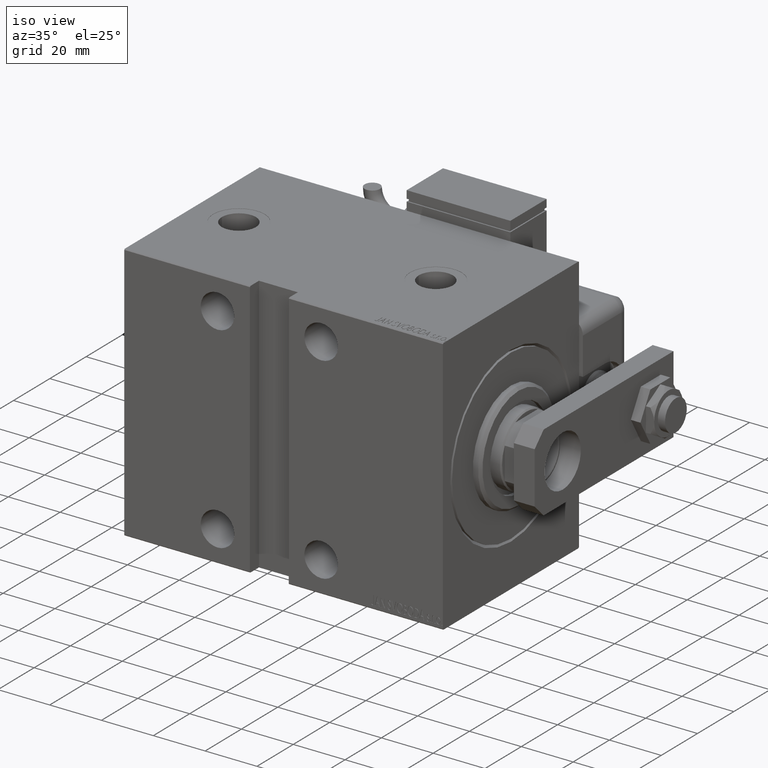
[diagram: clean part render]
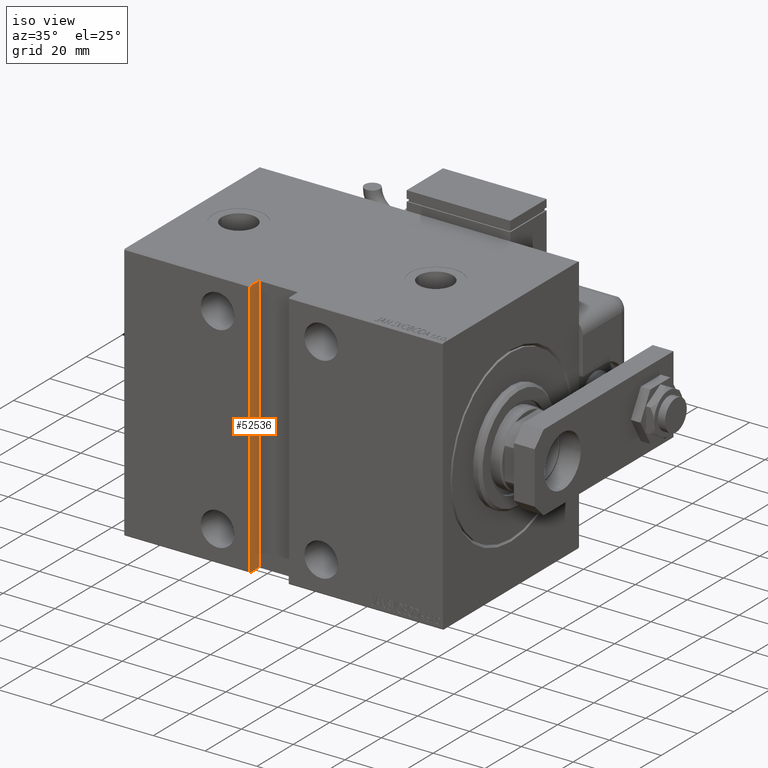
[diagram: same view with one face highlighted and labeled with its STEP entity id]
A machine part, iso view. The second image highlights one B-rep face of the part: STEP entity #52536.
In plain terms, the highlighted planar face has unit normal (-1, -0, -0).
Its self-contained STEP definition (entity closure, byte-faithful):
#1500 = DIRECTION ( 'NONE',  ( -2.775557561562893816E-16, 1.387778780781446908E-16, -1.000000000000000000 ) ) ;
#1581 = CARTESIAN_POINT ( 'NONE',  ( 74.50000000000004263, 37.20000000000000995, 50.00000000000001421 ) ) ;
#3787 = VERTEX_POINT ( 'NONE', #1581 ) ;
#6398 = EDGE_CURVE ( 'NONE', #46319, #32479, #11494, .T. ) ;
#9895 = VECTOR ( 'NONE', #30037, 1000.000000000000000 ) ;
#11494 = LINE ( 'NONE', #25175, #9895 ) ;
#12098 = CARTESIAN_POINT ( 'NONE',  ( 74.50000000000001421, 37.20000000000001705, -49.99999999999991473 ) ) ;
#12489 = VERTEX_POINT ( 'NONE', #13392 ) ;
#13114 = CARTESIAN_POINT ( 'NONE',  ( 74.50000000000001421, 32.50000000000000711, -49.99999999999991473 ) ) ;
#13392 = CARTESIAN_POINT ( 'NONE',  ( 74.50000000000001421, 37.50000000000000711, -49.70000000000003126 ) ) ;
#14417 = ORIENTED_EDGE ( 'NONE', *, *, #6398, .F. ) ;
#14741 = LINE ( 'NONE', #37268, #43562 ) ;
#14858 = LINE ( 'NONE', #51957, #34447 ) ;
#15161 = VERTEX_POINT ( 'NONE', #28469 ) ;
#16138 = ORIENTED_EDGE ( 'NONE', *, *, #47777, .F. ) ;
#23323 = LINE ( 'NONE', #55589, #37532 ) ;
#23863 = DIRECTION ( 'NONE',  ( -1.962615573354697696E-16, -0.7071067811865556774, -0.7071067811865393571 ) ) ;
#25175 = CARTESIAN_POINT ( 'NONE',  ( 74.50000000000001421, 32.50000000000000711, -49.99999999999991473 ) ) ;
#26635 = CARTESIAN_POINT ( 'NONE',  ( 74.50000000000004263, 32.49999999999999289, 50.00000000000001421 ) ) ;
#27995 = FACE_OUTER_BOUND ( 'NONE', #34341, .T. ) ;
#28371 = AXIS2_PLACEMENT_3D ( 'NONE', #55995, #59137, #51999 ) ;
#28469 = CARTESIAN_POINT ( 'NONE',  ( 74.50000000000004263, 37.49999999999999289, 49.70000000000000284 ) ) ;
#30037 = DIRECTION ( 'NONE',  ( -0.000000000000000000, 1.000000000000000000, 1.261617073437677752E-16 ) ) ;
#30730 = ORIENTED_EDGE ( 'NONE', *, *, #46542, .T. ) ;
#31982 = EDGE_CURVE ( 'NONE', #41281, #3787, #32675, .T. ) ;
#32393 = EDGE_CURVE ( 'NONE', #15161, #12489, #14858, .T. ) ;
#32470 = DIRECTION ( 'NONE',  ( -1.962615573354743549E-16, 0.7071067811865393571, -0.7071067811865556774 ) ) ;
#32479 = VERTEX_POINT ( 'NONE', #12098 ) ;
#32675 = LINE ( 'NONE', #42702, #36406 ) ;
#33973 = CARTESIAN_POINT ( 'NONE',  ( 74.50000000000004263, 32.50000000000002132, -50.00000000000000711 ) ) ;
#34341 = EDGE_LOOP ( 'NONE', ( #41981, #30730, #14417, #16138, #46628, #36065 ) ) ;
#34447 = VECTOR ( 'NONE', #1500, 1000.000000000000000 ) ;
#36065 = ORIENTED_EDGE ( 'NONE', *, *, #37549, .T. ) ;
#36406 = VECTOR ( 'NONE', #42405, 1000.000000000000000 ) ;
#37268 = CARTESIAN_POINT ( 'NONE',  ( 74.50000000000001421, 37.50000000000001421, -49.70000000000002416 ) ) ;
#37532 = VECTOR ( 'NONE', #32470, 1000.000000000000000 ) ;
#37549 = EDGE_CURVE ( 'NONE', #3787, #15161, #23323, .T. ) ;
#40803 = LINE ( 'NONE', #13114, #45580 ) ;
#41281 = VERTEX_POINT ( 'NONE', #26635 ) ;
#41981 = ORIENTED_EDGE ( 'NONE', *, *, #32393, .T. ) ;
#42303 = PLANE ( 'NONE',  #28371 ) ;
#42405 = DIRECTION ( 'NONE',  ( -0.000000000000000000, 1.000000000000000000, 1.261617073437677752E-16 ) ) ;
#42702 = CARTESIAN_POINT ( 'NONE',  ( 74.50000000000004263, 32.49999999999999289, 50.00000000000001421 ) ) ;
#43562 = VECTOR ( 'NONE', #23863, 1000.000000000000000 ) ;
#45580 = VECTOR ( 'NONE', #54484, 1000.000000000000000 ) ;
#46319 = VERTEX_POINT ( 'NONE', #33973 ) ;
#46542 = EDGE_CURVE ( 'NONE', #12489, #32479, #14741, .T. ) ;
#46628 = ORIENTED_EDGE ( 'NONE', *, *, #31982, .T. ) ;
#47777 = EDGE_CURVE ( 'NONE', #41281, #46319, #40803, .T. ) ;
#51957 = CARTESIAN_POINT ( 'NONE',  ( 74.50000000000001421, 37.50000000000000711, -49.99999999999991473 ) ) ;
#51999 = DIRECTION ( 'NONE',  ( -2.775557561562893816E-16, 0.000000000000000000, -1.000000000000000000 ) ) ;
#52536 = ADVANCED_FACE ( 'NONE', ( #27995 ), #42303, .F. ) ;
#54484 = DIRECTION ( 'NONE',  ( -2.775557561562893816E-16, 1.387778780781446908E-16, -1.000000000000000000 ) ) ;
#55589 = CARTESIAN_POINT ( 'NONE',  ( 74.50000000000004263, 37.20000000000000284, 50.00000000000002132 ) ) ;
#55995 = CARTESIAN_POINT ( 'NONE',  ( 74.50000000000001421, 32.50000000000000711, -49.99999999999991473 ) ) ;
#59137 = DIRECTION ( 'NONE',  ( 1.000000000000000000, 3.501690807976795097E-32, -2.775557561562893816E-16 ) ) ;